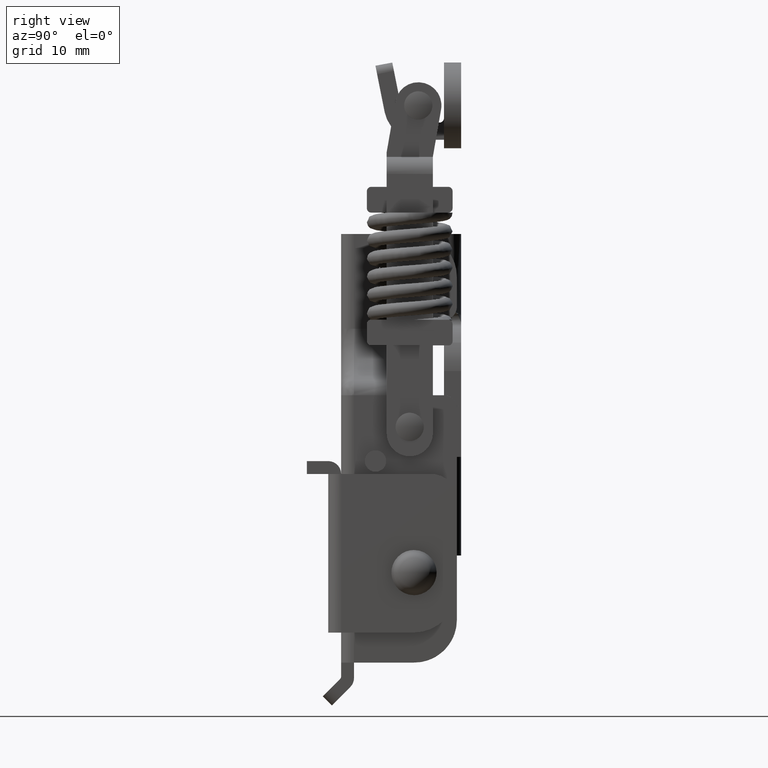
[diagram: clean part render]
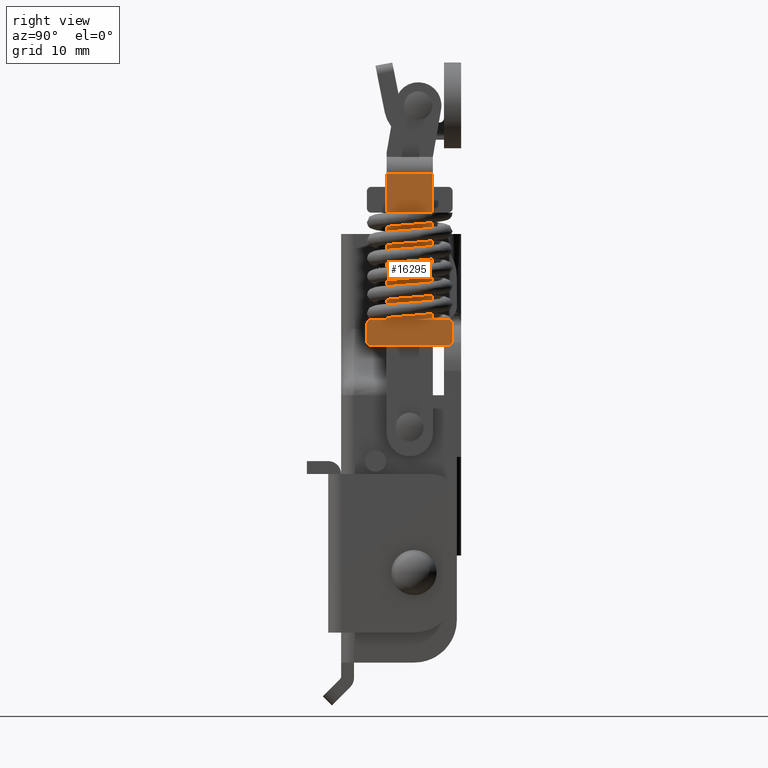
[diagram: same view with one face highlighted and labeled with its STEP entity id]
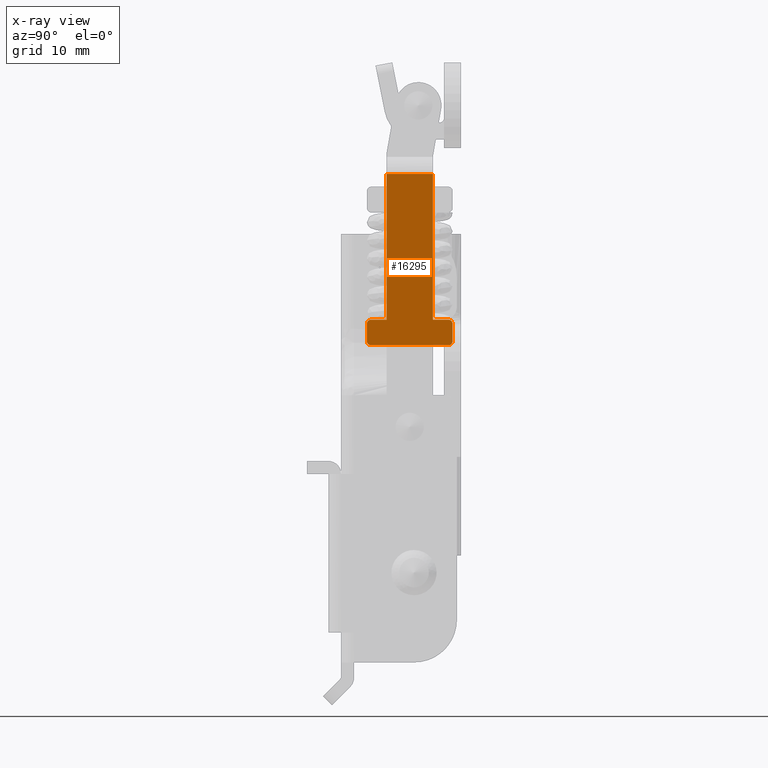
[diagram: x-ray of the same camera — body ghosted, the highlighted face saturated]
A machine part, right view. The second image highlights one B-rep face of the part: STEP entity #16295.
The next image is the same camera in x-ray: the body ghosted, the highlighted face saturated — about 0% of this face is hidden behind the body in this view.
In plain terms, the highlighted face is a freeform B-spline surface patch.
Its self-contained STEP definition (entity closure, byte-faithful):
#15829=CARTESIAN_POINT('',(3.700000000000150,15.250000000000000,-8.0));
#15830=VERTEX_POINT('',#15829);
#15844=CARTESIAN_POINT('',(-1.700000000000145,15.250000000000000,-8.0));
#15845=VERTEX_POINT('',#15844);
#15846=CARTESIAN_POINT('',(-1.700000000000145,15.250000000000000,-8.0));
#15847=CARTESIAN_POINT('',(3.700000000000150,15.250000000000000,-8.0));
#15848=QUASI_UNIFORM_CURVE('',1,(#15846,#15847),.UNSPECIFIED.,.F.,.U.);
#15849=EDGE_CURVE('',#15845,#15830,#15848,.T.);
#16180=CARTESIAN_POINT('',(6.499499980618181,15.250000000000000,-7.001000038763880));
#16181=CARTESIAN_POINT('',(-4.499500248839087,15.250000000000000,-7.001000038763880));
#16182=CARTESIAN_POINT('',(6.499499980618181,15.250000000000000,-28.999000497677930));
#16183=CARTESIAN_POINT('',(-4.499500248839087,15.250000000000000,-28.999000497677930));
#16184=B_SPLINE_SURFACE_WITH_KNOTS('',1,1,((#16180,#16182),(#16181,#16183)),.UNSPECIFIED.,.F.,.F.,.U.,(2,2),(2,2),(0.0,10.999000229457270),(0.0,21.998000458914049),.UNSPECIFIED.);
#16185=ORIENTED_EDGE('',*,*,#15849,.T.);
#16186=CARTESIAN_POINT('',(3.700000000000105,15.250000000000000,-25.0));
#16187=VERTEX_POINT('',#16186);
#16188=CARTESIAN_POINT('',(3.700000000000150,15.250000000000000,-8.0));
#16189=CARTESIAN_POINT('',(3.700000000000105,15.250000000000000,-25.0));
#16190=QUASI_UNIFORM_CURVE('',1,(#16188,#16189),.UNSPECIFIED.,.F.,.U.);
#16191=EDGE_CURVE('',#15830,#16187,#16190,.T.);
#16192=ORIENTED_EDGE('',*,*,#16191,.T.);
#16193=CARTESIAN_POINT('',(5.500001000000110,15.250000000000000,-25.0));
#16194=VERTEX_POINT('',#16193);
#16195=CARTESIAN_POINT('',(3.700000000000105,15.250000000000000,-25.0));
#16196=CARTESIAN_POINT('',(5.500001000000110,15.250000000000000,-25.0));
#16197=QUASI_UNIFORM_CURVE('',1,(#16195,#16196),.UNSPECIFIED.,.F.,.U.);
#16198=EDGE_CURVE('',#16187,#16194,#16197,.T.);
#16199=ORIENTED_EDGE('',*,*,#16198,.T.);
#16200=CARTESIAN_POINT('',(6.000000000000110,15.250000000000000,-25.500000000000000));
#16201=VERTEX_POINT('',#16200);
#16202=CARTESIAN_POINT('',(5.500001000000110,15.250000000000000,-25.0));
#16203=CARTESIAN_POINT('',(6.000000500000110,15.249999999999998,-25.0));
#16204=CARTESIAN_POINT('',(6.000000000000110,15.250000000000000,-25.500000000000000));
#16212=(BOUNDED_CURVE()B_SPLINE_CURVE(2,(#16202,#16203,#16204),.UNSPECIFIED.,.F.,.U.)CURVE()GEOMETRIC_REPRESENTATION_ITEM()QUASI_UNIFORM_CURVE()RATIONAL_B_SPLINE_CURVE((1.0,0.707106781186548,1.0))REPRESENTATION_ITEM(''));
#16213=EDGE_CURVE('',#16194,#16201,#16212,.T.);
#16214=ORIENTED_EDGE('',*,*,#16213,.T.);
#16215=CARTESIAN_POINT('',(6.000000000000110,15.250000000000000,-27.500000000000000));
#16216=VERTEX_POINT('',#16215);
#16217=CARTESIAN_POINT('',(6.000000000000110,15.250000000000000,-25.500000000000000));
#16218=CARTESIAN_POINT('',(6.000000000000110,15.250000000000000,-27.500000000000000));
#16219=QUASI_UNIFORM_CURVE('',1,(#16217,#16218),.UNSPECIFIED.,.F.,.U.);
#16220=EDGE_CURVE('',#16201,#16216,#16219,.T.);
#16221=ORIENTED_EDGE('',*,*,#16220,.T.);
#16222=CARTESIAN_POINT('',(5.499999999999890,15.250000000000000,-28.0));
#16223=VERTEX_POINT('',#16222);
#16224=CARTESIAN_POINT('',(6.000000000000110,15.250000000000000,-27.500000000000000));
#16225=CARTESIAN_POINT('',(5.999999999999888,15.249999999999998,-27.999999999999996));
#16226=CARTESIAN_POINT('',(5.499999999999890,15.250000000000000,-28.0));
#16234=(BOUNDED_CURVE()B_SPLINE_CURVE(2,(#16224,#16225,#16226),.UNSPECIFIED.,.F.,.U.)CURVE()GEOMETRIC_REPRESENTATION_ITEM()QUASI_UNIFORM_CURVE()RATIONAL_B_SPLINE_CURVE((1.0,0.707106781186548,1.0))REPRESENTATION_ITEM(''));
#16235=EDGE_CURVE('',#16216,#16223,#16234,.T.);
#16236=ORIENTED_EDGE('',*,*,#16235,.T.);
#16237=CARTESIAN_POINT('',(-3.500000000000115,15.250000000000000,-28.0));
#16238=VERTEX_POINT('',#16237);
#16239=CARTESIAN_POINT('',(5.499999999999890,15.250000000000000,-28.0));
#16240=CARTESIAN_POINT('',(-3.500000000000115,15.250000000000000,-28.0));
#16241=QUASI_UNIFORM_CURVE('',1,(#16239,#16240),.UNSPECIFIED.,.F.,.U.);
#16242=EDGE_CURVE('',#16223,#16238,#16241,.T.);
#16243=ORIENTED_EDGE('',*,*,#16242,.T.);
#16244=CARTESIAN_POINT('',(-4.000000000000116,15.250000000000000,-27.500000000000000));
#16245=VERTEX_POINT('',#16244);
#16246=CARTESIAN_POINT('',(-3.500000000000115,15.250000000000000,-28.0));
#16247=CARTESIAN_POINT('',(-4.000000000000115,15.249999999999998,-27.999999999999996));
#16248=CARTESIAN_POINT('',(-4.000000000000115,15.250000000000000,-27.500000000000000));
#16256=(BOUNDED_CURVE()B_SPLINE_CURVE(2,(#16246,#16247,#16248),.UNSPECIFIED.,.F.,.U.)CURVE()GEOMETRIC_REPRESENTATION_ITEM()QUASI_UNIFORM_CURVE()RATIONAL_B_SPLINE_CURVE((1.0,0.707106781186548,1.0))REPRESENTATION_ITEM(''));
#16257=EDGE_CURVE('',#16238,#16245,#16256,.T.);
#16258=ORIENTED_EDGE('',*,*,#16257,.T.);
#16259=CARTESIAN_POINT('',(-4.000000000000116,15.250000000000000,-25.500000000000000));
#16260=VERTEX_POINT('',#16259);
#16261=CARTESIAN_POINT('',(-4.000000000000116,15.250000000000000,-27.500000000000000));
#16262=CARTESIAN_POINT('',(-4.000000000000116,15.250000000000000,-25.500000000000000));
#16263=QUASI_UNIFORM_CURVE('',1,(#16261,#16262),.UNSPECIFIED.,.F.,.U.);
#16264=EDGE_CURVE('',#16245,#16260,#16263,.T.);
#16265=ORIENTED_EDGE('',*,*,#16264,.T.);
#16266=CARTESIAN_POINT('',(-3.499999000000115,15.250000000000000,-25.0));
#16267=VERTEX_POINT('',#16266);
#16268=CARTESIAN_POINT('',(-4.000000000000116,15.250000000000000,-25.500000000000000));
#16269=CARTESIAN_POINT('',(-3.999999500000115,15.249999999999998,-25.0));
#16270=CARTESIAN_POINT('',(-3.499999000000115,15.250000000000000,-25.0));
#16278=(BOUNDED_CURVE()B_SPLINE_CURVE(2,(#16268,#16269,#16270),.UNSPECIFIED.,.F.,.U.)CURVE()GEOMETRIC_REPRESENTATION_ITEM()QUASI_UNIFORM_CURVE()RATIONAL_B_SPLINE_CURVE((1.0,0.707106781186548,1.0))REPRESENTATION_ITEM(''));
#16279=EDGE_CURVE('',#16260,#16267,#16278,.T.);
#16280=ORIENTED_EDGE('',*,*,#16279,.T.);
#16281=CARTESIAN_POINT('',(-1.700000000000100,15.250000000000000,-25.0));
#16282=VERTEX_POINT('',#16281);
#16283=CARTESIAN_POINT('',(-3.499999000000115,15.250000000000000,-25.0));
#16284=CARTESIAN_POINT('',(-1.700000000000100,15.250000000000000,-25.0));
#16285=QUASI_UNIFORM_CURVE('',1,(#16283,#16284),.UNSPECIFIED.,.F.,.U.);
#16286=EDGE_CURVE('',#16267,#16282,#16285,.T.);
#16287=ORIENTED_EDGE('',*,*,#16286,.T.);
#16288=CARTESIAN_POINT('',(-1.700000000000100,15.250000000000000,-25.0));
#16289=CARTESIAN_POINT('',(-1.700000000000145,15.250000000000000,-8.0));
#16290=QUASI_UNIFORM_CURVE('',1,(#16288,#16289),.UNSPECIFIED.,.F.,.U.);
#16291=EDGE_CURVE('',#16282,#15845,#16290,.T.);
#16292=ORIENTED_EDGE('',*,*,#16291,.T.);
#16293=EDGE_LOOP('',(#16185,#16192,#16199,#16214,#16221,#16236,#16243,#16258,#16265,#16280,#16287,#16292));
#16294=FACE_OUTER_BOUND('',#16293,.T.);
#16295=ADVANCED_FACE('',(#16294),#16184,.F.);